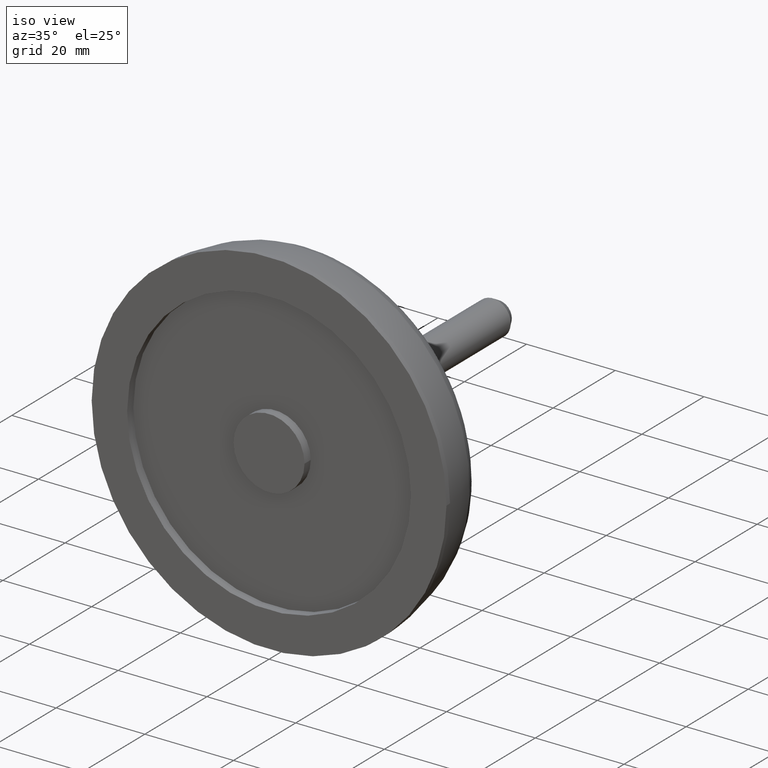
[diagram: clean part render]
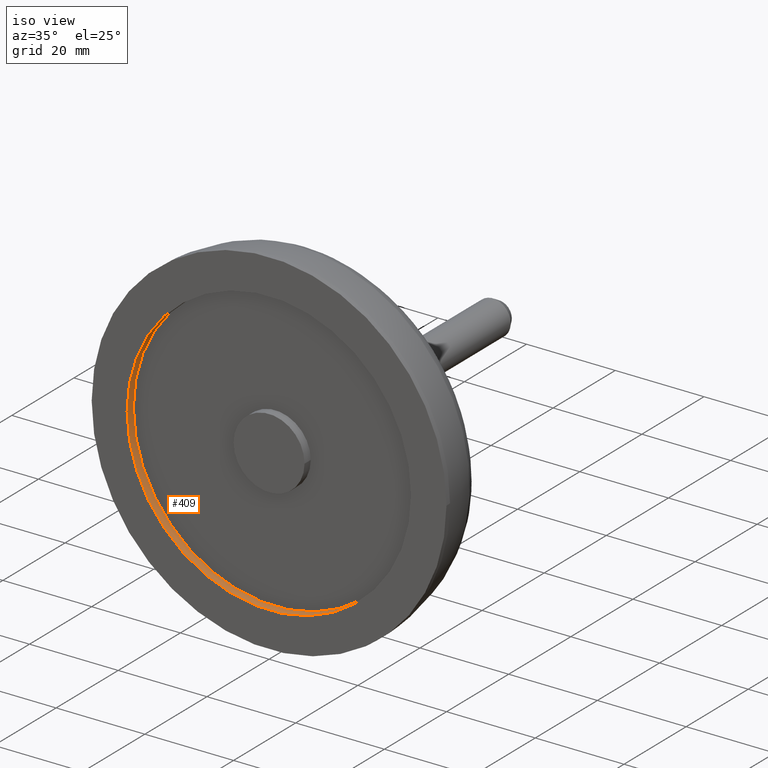
[diagram: same view with one face highlighted and labeled with its STEP entity id]
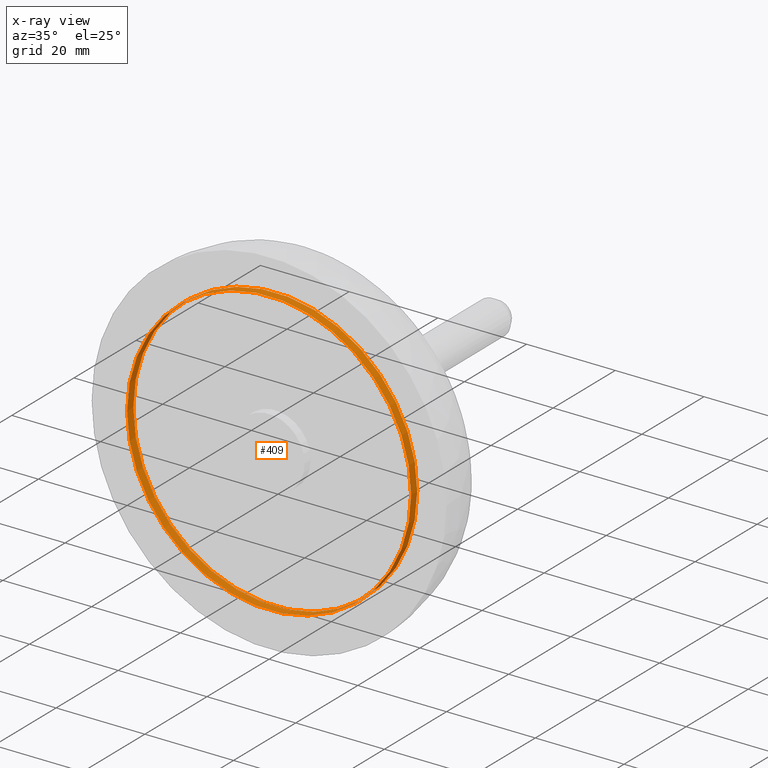
[diagram: x-ray of the same camera — body ghosted, the highlighted face saturated]
A machine part, iso view. The second image highlights one B-rep face of the part: STEP entity #409.
The next image is the same camera in x-ray: the body ghosted, the highlighted face saturated — about 0% of this face is hidden behind the body in this view.
In plain terms, the highlighted cylindrical surface (bore or boss wall) has radius 32 mm, axis along (-0, 1, 0).
Its self-contained STEP definition (entity closure, byte-faithful):
#37=CYLINDRICAL_SURFACE('',#501,32.);
#48=LINE('',#867,#60);
#60=VECTOR('',#609,32.);
#88=FACE_OUTER_BOUND('',#114,.T.);
#114=EDGE_LOOP('',(#327,#328,#329,#330,#331,#332));
#128=CIRCLE('',#469,32.);
#129=CIRCLE('',#470,32.);
#152=CIRCLE('',#499,32.);
#153=CIRCLE('',#500,32.);
#171=VERTEX_POINT('',#684);
#172=VERTEX_POINT('',#685);
#191=VERTEX_POINT('',#862);
#192=VERTEX_POINT('',#863);
#214=EDGE_CURVE('',#171,#172,#128,.T.);
#215=EDGE_CURVE('',#172,#171,#129,.T.);
#240=EDGE_CURVE('',#191,#192,#152,.T.);
#241=EDGE_CURVE('',#192,#191,#153,.T.);
#242=EDGE_CURVE('',#192,#172,#48,.T.);
#327=ORIENTED_EDGE('',*,*,#240,.T.);
#328=ORIENTED_EDGE('',*,*,#242,.T.);
#329=ORIENTED_EDGE('',*,*,#214,.F.);
#330=ORIENTED_EDGE('',*,*,#215,.F.);
#331=ORIENTED_EDGE('',*,*,#242,.F.);
#332=ORIENTED_EDGE('',*,*,#241,.T.);
#409=ADVANCED_FACE('',(#88),#37,.F.);
#469=AXIS2_PLACEMENT_3D('',#686,#541,#542);
#470=AXIS2_PLACEMENT_3D('',#687,#543,#544);
#499=AXIS2_PLACEMENT_3D('',#864,#603,#604);
#500=AXIS2_PLACEMENT_3D('',#865,#605,#606);
#501=AXIS2_PLACEMENT_3D('',#866,#607,#608);
#541=DIRECTION('center_axis',(-1.29031692906312E-13,1.,0.));
#542=DIRECTION('ref_axis',(-1.,-1.2903169675847E-13,0.));
#543=DIRECTION('center_axis',(-1.29031692906312E-13,1.,0.));
#544=DIRECTION('ref_axis',(-1.,-1.2903169675847E-13,0.));
#603=DIRECTION('center_axis',(-1.29031692906312E-13,1.,0.));
#604=DIRECTION('ref_axis',(-1.,-1.2903169675847E-13,0.));
#605=DIRECTION('center_axis',(-1.29031692906312E-13,1.,0.));
#606=DIRECTION('ref_axis',(-1.,-1.2903169675847E-13,0.));
#607=DIRECTION('center_axis',(-1.29031692906312E-13,1.,0.));
#608=DIRECTION('ref_axis',(-1.,-1.2903169675847E-13,0.));
#609=DIRECTION('',(1.29031692906312E-13,-1.,0.));
#684=CARTESIAN_POINT('',(-32.,2.57219454069535E-8,0.));
#685=CARTESIAN_POINT('',(32.,2.57302033845885E-8,-3.91886975727152E-15));
#686=CARTESIAN_POINT('Origin',(6.66133482827213E-15,2.57260744212498E-8,
0.));
#687=CARTESIAN_POINT('Origin',(6.66133482827213E-15,2.57260744212498E-8,
0.));
#862=CARTESIAN_POINT('',(-32.0000000000002,2.00000002571962,0.));
#863=CARTESIAN_POINT('',(31.9999999999997,2.00000002572788,-3.91886975727152E-15));
#864=CARTESIAN_POINT('Origin',(-2.51402050984052E-13,2.00000002572375,0.));
#865=CARTESIAN_POINT('Origin',(-2.51402050984052E-13,2.00000002572375,0.));
#866=CARTESIAN_POINT('Origin',(-1.2237035807789E-13,1.00000002572491,0.));
#867=CARTESIAN_POINT('',(31.9999999999998,1.00000002572904,-3.91886975727152E-15));